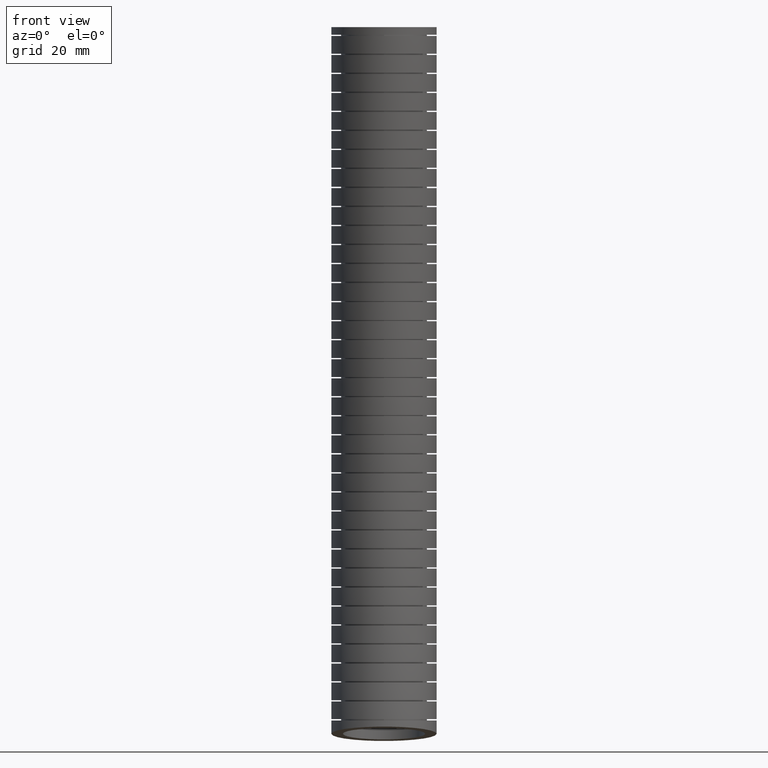
[diagram: clean part render]
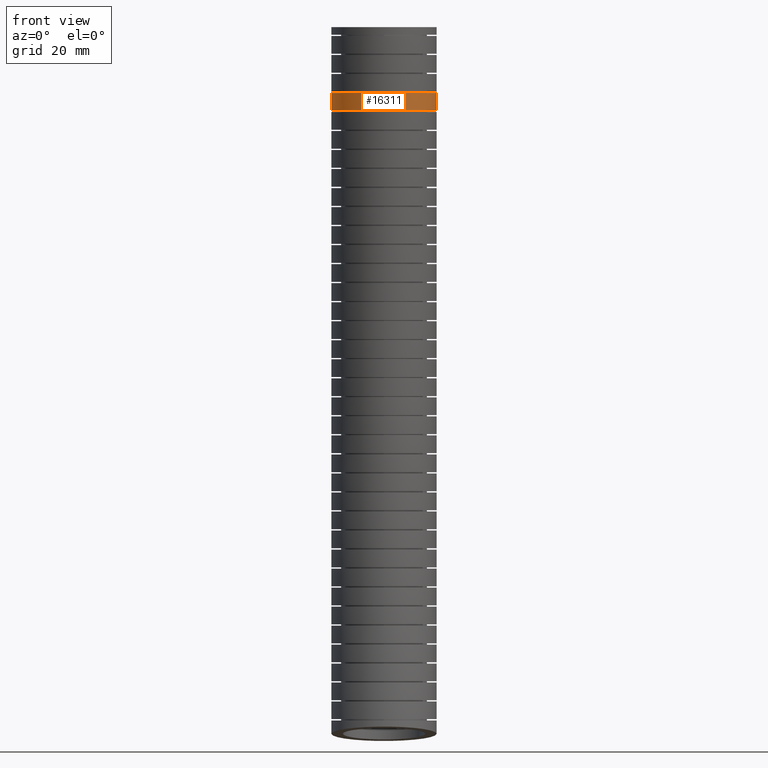
[diagram: same view with one face highlighted and labeled with its STEP entity id]
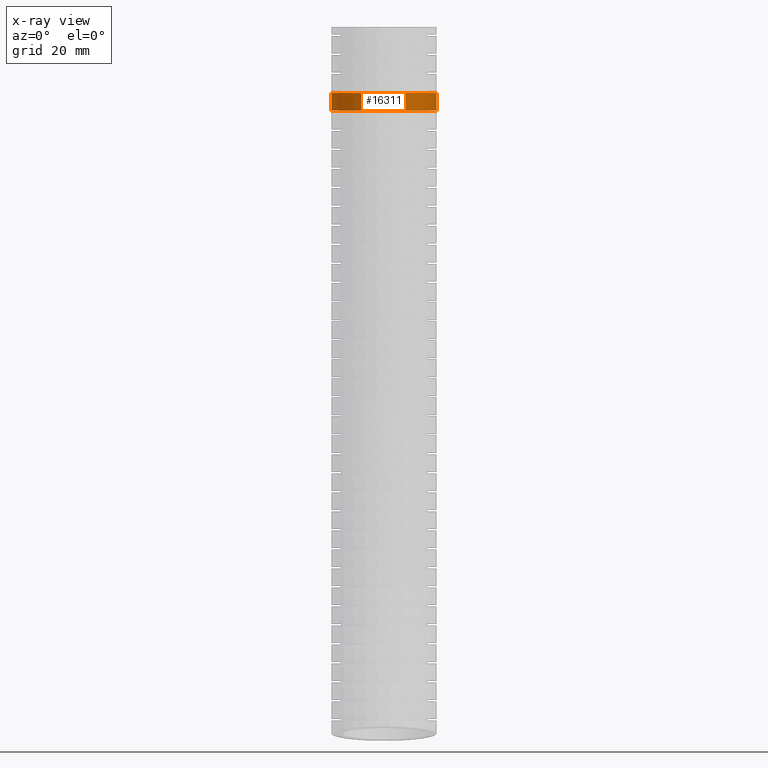
[diagram: x-ray of the same camera — body ghosted, the highlighted face saturated]
A machine part, front view. The second image highlights one B-rep face of the part: STEP entity #16311.
The next image is the same camera in x-ray: the body ghosted, the highlighted face saturated — about 0% of this face is hidden behind the body in this view.
In plain terms, the highlighted face is a freeform B-spline surface patch.
Its self-contained STEP definition (entity closure, byte-faithful):
#600 = EDGE_CURVE ( 'NONE', #16302, #602, #9120, .T. ) ;
#601 = ORIENTED_EDGE ( 'NONE', *, *, #614, .F. ) ;
#602 = VERTEX_POINT ( 'NONE', #9121 ) ;
#614 = EDGE_CURVE ( 'NONE', #16298, #602, #9215, .T. ) ;
#1728 = CARTESIAN_POINT ( 'NONE',  ( 0.4150000000000000900, 0.8772143935941071300, -1.050081882658727000 ) ) ;
#1850 = CARTESIAN_POINT ( 'NONE',  ( -0.4150000000000002000, 0.02915619261226633200, -0.6594165567846660400 ) ) ;
#1851 = CARTESIAN_POINT ( 'NONE',  ( 0.4150000000000000900, 0.02311179758190220000, -0.5195564475854548300 ) ) ;
#1854 = CARTESIAN_POINT ( 'NONE',  ( -0.4150000000000000900, 0.02311179758190024300, -0.5195564475854317400 ) ) ;
#1899 = CARTESIAN_POINT ( 'NONE',  ( -0.4150000000000002000, 0.02915619261226633200, -0.6594165567846660400 ) ) ;
#1900 = CARTESIAN_POINT ( 'NONE',  ( -0.4150000000000000900, 0.02716095543983203200, -0.6127973374930321100 ) ) ;
#1901 = CARTESIAN_POINT ( 'NONE',  ( -0.4150000000000000900, 0.02514466886423209400, -0.5661772389268879800 ) ) ;
#1902 = CARTESIAN_POINT ( 'NONE',  ( -0.4150000000000000900, 0.02311179758190024300, -0.5195564475854317400 ) ) ;
#1904 = B_SPLINE_CURVE_WITH_KNOTS ( 'NONE', 3,
 ( #1902, #1901, #1900, #1899 ),
 .UNSPECIFIED., .F., .F.,
 ( 4, 4 ),
 ( 0.09308337064173798100, 0.1181419380860695600 ),
 .UNSPECIFIED. ) ;
#1915 = FACE_OUTER_BOUND ( 'NONE', #16310, .T. ) ;
#1952 =( BOUNDED_SURFACE ( )  B_SPLINE_SURFACE ( 3, 3, ( 
 ( #2000, #1999, #1998, #1997, #1996, #1995 ),
 ( #1994, #1993, #1991, #1990, #1989, #1988 ),
 ( #1987, #1986, #1985, #1984, #1983, #1982 ),
 ( #1981, #1980, #1979, #1978, #1977, #1976 ),
 ( #1975, #1974, #1973, #1972, #1971, #1970 ),
 ( #1969, #1728, #2030, #2029, #2028, #2027 ),
 ( #2026, #2025, #2024, #2023, #2022, #2021 ) ),
 .UNSPECIFIED., .F., .F., .F. ) 
 B_SPLINE_SURFACE_WITH_KNOTS ( ( 4, 3, 4 ),
 ( 4, 1, 1, 4 ),
 ( 0.0000000000000000000, 0.5000000000000000000, 1.000000000000000000 ),
 ( 0.0000000000000000000, 0.5600000000000000500, 0.8973141982067990300, 1.000000000000000000 ),
 .UNSPECIFIED. ) 
 GEOMETRIC_REPRESENTATION_ITEM ( )  RATIONAL_B_SPLINE_SURFACE ( (
 ( 1.000000000000000000, 1.000000000000000000, 1.000000000000000000, 1.000000000000000000, 1.000000000000000000, 1.000000000000000000),
 ( 0.3333333333333333100, 0.3333333333333333100, 0.3333333333333333100, 0.3333333333333333100, 0.3333333333333332600, 0.3333333333333333100),
 ( 0.3333333333333333100, 0.3333333333333333100, 0.3333333333333333100, 0.3333333333333333100, 0.3333333333333332600, 0.3333333333333333100),
 ( 1.000000000000000000, 1.000000000000000000, 1.000000000000000000, 1.000000000000000000, 1.000000000000000000, 1.000000000000000000),
 ( 0.3333333333333333100, 0.3333333333333333100, 0.3333333333333333100, 0.3333333333333333100, 0.3333333333333332600, 0.3333333333333333100),
 ( 0.3333333333333333100, 0.3333333333333333100, 0.3333333333333333100, 0.3333333333333333100, 0.3333333333333332600, 0.3333333333333333100),
 ( 1.000000000000000000, 1.000000000000000000, 1.000000000000000000, 1.000000000000000000, 1.000000000000000000, 1.000000000000000000) ) ) 
 REPRESENTATION_ITEM ( '' )  SURFACE ( )  );
#1969 = CARTESIAN_POINT ( 'NONE',  ( 0.4150000000000000900, 0.8300000000000001800, 0.0000000000000000000 ) ) ;
#1970 = CARTESIAN_POINT ( 'NONE',  ( -0.4149999999999999200, 0.7922141346493595200, -5.683419208173947200 ) ) ;
#1971 = CARTESIAN_POINT ( 'NONE',  ( -0.4150000000000000400, 0.8104118928973711400, -5.486989566509566700 ) ) ;
#1972 = CARTESIAN_POINT ( 'NONE',  ( -0.4149999999999999200, 0.8883877521622221000, -4.645305119166129900 ) ) ;
#1973 = CARTESIAN_POINT ( 'NONE',  ( -0.4149999999999999200, 0.9528682252578860600, -2.732677208711230800 ) ) ;
#1974 = CARTESIAN_POINT ( 'NONE',  ( -0.4149999999999999200, 0.8772143935941071300, -1.050081882658727000 ) ) ;
#1975 = CARTESIAN_POINT ( 'NONE',  ( -0.4150000000000000400, 0.8300000000000001800, 0.0000000000000000000 ) ) ;
#1976 = CARTESIAN_POINT ( 'NONE',  ( -0.4150000000000000400, -0.02999999999999996800, -5.569999999999998500 ) ) ;
#1977 = CARTESIAN_POINT ( 'NONE',  ( -0.4150000000000000900, -0.01243844818931298000, -5.380037381098891700 ) ) ;
#1978 = CARTESIAN_POINT ( 'NONE',  ( -0.4150000000000000900, 0.06281132015026594200, -4.566063580857106200 ) ) ;
#1979 = CARTESIAN_POINT ( 'NONE',  ( -0.4149999999999999200, 0.1218071073635320100, -2.711443563840852700 ) ) ;
#1980 = CARTESIAN_POINT ( 'NONE',  ( -0.4150000000000000900, 0.04680663936954139500, -1.041922460934817000 ) ) ;
#1981 = CARTESIAN_POINT ( 'NONE',  ( -0.4150000000000000900, 5.082284216461516900E-017, 0.0000000000000000000 ) ) ;
#1982 = CARTESIAN_POINT ( 'NONE',  ( -0.4150000000000000900, -0.8522141346493592500, -5.456580791826050700 ) ) ;
#1983 = CARTESIAN_POINT ( 'NONE',  ( -0.4150000000000002000, -0.8352887892759974800, -5.273085195688222100 ) ) ;
#1984 = CARTESIAN_POINT ( 'NONE',  ( -0.4150000000000000900, -0.7627651118616902700, -4.486822042548080700 ) ) ;
#1985 = CARTESIAN_POINT ( 'NONE',  ( -0.4150000000000000400, -0.7092540105308221500, -2.690209918970475100 ) ) ;
#1986 = CARTESIAN_POINT ( 'NONE',  ( -0.4150000000000000900, -0.7836011148550242600, -1.033763039210906500 ) ) ;
#1987 = CARTESIAN_POINT ( 'NONE',  ( -0.4150000000000000900, -0.8300000000000001800, 0.0000000000000000000 ) ) ;
#1988 = CARTESIAN_POINT ( 'NONE',  ( 0.4150000000000000400, -0.8522141346493592500, -5.456580791826050700 ) ) ;
#1989 = CARTESIAN_POINT ( 'NONE',  ( 0.4150000000000002000, -0.8352887892759974800, -5.273085195688222100 ) ) ;
#1990 = CARTESIAN_POINT ( 'NONE',  ( 0.4150000000000000400, -0.7627651118616902700, -4.486822042548080700 ) ) ;
#1991 = CARTESIAN_POINT ( 'NONE',  ( 0.4150000000000000400, -0.7092540105308221500, -2.690209918970475100 ) ) ;
#1993 = CARTESIAN_POINT ( 'NONE',  ( 0.4150000000000000900, -0.7836011148550242600, -1.033763039210906500 ) ) ;
#1994 = CARTESIAN_POINT ( 'NONE',  ( 0.4150000000000000900, -0.8300000000000001800, 0.0000000000000000000 ) ) ;
#1995 = CARTESIAN_POINT ( 'NONE',  ( 0.4150000000000000400, -0.03000000000000001600, -5.569999999999998500 ) ) ;
#1996 = CARTESIAN_POINT ( 'NONE',  ( 0.4150000000000000900, -0.01243844818931303500, -5.380037381098891700 ) ) ;
#1997 = CARTESIAN_POINT ( 'NONE',  ( 0.4150000000000000900, 0.06281132015026588700, -4.566063580857106200 ) ) ;
#1998 = CARTESIAN_POINT ( 'NONE',  ( 0.4149999999999999200, 0.1218071073635319700, -2.711443563840852700 ) ) ;
#1999 = CARTESIAN_POINT ( 'NONE',  ( 0.4150000000000000900, 0.04680663936954134600, -1.041922460934817000 ) ) ;
#2000 = CARTESIAN_POINT ( 'NONE',  ( 0.4150000000000000900, 0.0000000000000000000, 0.0000000000000000000 ) ) ;
#2006 = CARTESIAN_POINT ( 'NONE',  ( 0.2742491807208282100, -0.2895358270586653700, -0.5195564475854320700 ) ) ;
#2007 = CARTESIAN_POINT ( 'NONE',  ( 0.3029727528102018100, -0.2608218082731244000, -0.5195564475854320700 ) ) ;
#2008 = CARTESIAN_POINT ( 'NONE',  ( 0.3121071908511868800, -0.2507560966552987400, -0.5195564475854315100 ) ) ;
#2009 = CARTESIAN_POINT ( 'NONE',  ( 0.3294675428818709100, -0.2296040799804550400, -0.5195564475854316200 ) ) ;
#2010 = CARTESIAN_POINT ( 'NONE',  ( 0.3376103117420691800, -0.2186112045115658800, -0.5195564475854315100 ) ) ;
#2011 = CARTESIAN_POINT ( 'NONE',  ( 0.3602017802865885600, -0.1847744518583299700, -0.5195564475854315100 ) ) ;
#2012 = CARTESIAN_POINT ( 'NONE',  ( 0.3729513078112539600, -0.1609356355721197600, -0.5195564475854318500 ) ) ;
#2013 = CARTESIAN_POINT ( 'NONE',  ( 0.3885771960678063300, -0.1232386343843415000, -0.5195564475854320700 ) ) ;
#2014 = CARTESIAN_POINT ( 'NONE',  ( 0.3932148939358325300, -0.1102792571021303900, -0.5195564475854320700 ) ) ;
#2015 = CARTESIAN_POINT ( 'NONE',  ( 0.4011160883544073200, -0.08420462716344492800, -0.5195564475854320700 ) ) ;
#2016 = CARTESIAN_POINT ( 'NONE',  ( 0.4044018585129887100, -0.07105409059020513500, -0.5195564475854319600 ) ) ;
#2017 = CARTESIAN_POINT ( 'NONE',  ( 0.4123092011968501600, -0.03127039678830209600, -0.5195564475854320700 ) ) ;
#2018 = CARTESIAN_POINT ( 'NONE',  ( 0.4150000000000000400, -0.004308424272490557800, -0.5195564475854547200 ) ) ;
#2019 = CARTESIAN_POINT ( 'NONE',  ( 0.4150000000000000900, 0.02311179758190220000, -0.5195564475854548300 ) ) ;
#2020 = B_SPLINE_CURVE_WITH_KNOTS ( 'NONE', 3,
 ( #2019, #2018, #2017, #2016, #2015, #2014, #2013, #2012, #2011, #2010, #2009, #2008, #2007, #2006, #2070, #2069, #2068, #2067, #2066, #2065, #2064, #2063, #2062, #2061, #2060, #2059, #2058, #2057, #2056, #2055, #2054, #2053, #2052, #2051, #2050, #2049, #2048, #2047, #2046, #2045, #2044, #2043, #2042, #2041, #2040, #2039, #2038 ),
 .UNSPECIFIED., .F., .F.,
 ( 4, 2, 2, 2, 2, 2, 2, 2, 2, 1, 2, 2, 2, 2, 2, 2, 2, 2, 2, 2, 2, 2, 2, 4 ),
 ( 0.0000000000000000000, 0.002059764832222988400, 0.003089647248334482800, 0.004119529664445976800, 0.006179294496668964700, 0.007209176912780458300, 0.008239059328891951800, 0.01029882416111494400, 0.01132870657722643600, 0.01235858899333793100, 0.01338847140944942800, 0.01441835382556092400, 0.01647811865778391800, 0.01750800107389541300, 0.01853788349000691200, 0.02059764832222990200, 0.02162753073834140100, 0.02265741315445290000, 0.02471717798667589700, 0.02677694281889889100, 0.02780682523501039000, 0.02883670765112188500, 0.03089647248334488600, 0.03295623731556789100 ),
 .UNSPECIFIED. ) ;
#2021 = CARTESIAN_POINT ( 'NONE',  ( 0.4150000000000000400, -0.03000000000000001600, -5.569999999999998500 ) ) ;
#2022 = CARTESIAN_POINT ( 'NONE',  ( 0.4150000000000000900, -0.01243844818931303500, -5.380037381098891700 ) ) ;
#2023 = CARTESIAN_POINT ( 'NONE',  ( 0.4150000000000000900, 0.06281132015026588700, -4.566063580857106200 ) ) ;
#2024 = CARTESIAN_POINT ( 'NONE',  ( 0.4149999999999999200, 0.1218071073635319700, -2.711443563840852700 ) ) ;
#2025 = CARTESIAN_POINT ( 'NONE',  ( 0.4150000000000000900, 0.04680663936954134600, -1.041922460934817000 ) ) ;
#2026 = CARTESIAN_POINT ( 'NONE',  ( 0.4150000000000000900, 0.0000000000000000000, 0.0000000000000000000 ) ) ;
#2027 = CARTESIAN_POINT ( 'NONE',  ( 0.4150000000000000400, 0.7922141346493595200, -5.683419208173947200 ) ) ;
#2028 = CARTESIAN_POINT ( 'NONE',  ( 0.4150000000000002000, 0.8104118928973711400, -5.486989566509566700 ) ) ;
#2029 = CARTESIAN_POINT ( 'NONE',  ( 0.4150000000000000400, 0.8883877521622221000, -4.645305119166129900 ) ) ;
#2030 = CARTESIAN_POINT ( 'NONE',  ( 0.4150000000000000400, 0.9528682252578860600, -2.732677208711230800 ) ) ;
#2038 = CARTESIAN_POINT ( 'NONE',  ( -0.4150000000000000900, 0.02311179758190024300, -0.5195564475854317400 ) ) ;
#2039 = CARTESIAN_POINT ( 'NONE',  ( -0.4150000000000001500, -0.003973675474081549500, -0.5195564475854316200 ) ) ;
#2040 = CARTESIAN_POINT ( 'NONE',  ( -0.4122860571347900500, -0.03148044610234705700, -0.5195564475854317400 ) ) ;
#2041 = CARTESIAN_POINT ( 'NONE',  ( -0.4016795590572413400, -0.08465603639334727500, -0.5195564475854316200 ) ) ;
#2042 = CARTESIAN_POINT ( 'NONE',  ( -0.3938356390526255900, -0.1105298522033690600, -0.5195564475854321800 ) ) ;
#2043 = CARTESIAN_POINT ( 'NONE',  ( -0.3782117351120438100, -0.1482563940619366100, -0.5195564475854320700 ) ) ;
#2044 = CARTESIAN_POINT ( 'NONE',  ( -0.3723231802516575600, -0.1607001103932285400, -0.5195564475854314000 ) ) ;
#2045 = CARTESIAN_POINT ( 'NONE',  ( -0.3594768215130053600, -0.1847056094003760000, -0.5195564475854314000 ) ) ;
#2046 = CARTESIAN_POINT ( 'NONE',  ( -0.3525025126856432000, -0.1963220815533822700, -0.5195564475854315100 ) ) ;
#2047 = CARTESIAN_POINT ( 'NONE',  ( -0.3299604081113782800, -0.2300366433708657100, -0.5195564475854315100 ) ) ;
#2048 = CARTESIAN_POINT ( 'NONE',  ( -0.3127537702713023000, -0.2510466481501426000, -0.5195564475854319600 ) ) ;
#2049 = CARTESIAN_POINT ( 'NONE',  ( -0.2740032007889223200, -0.2897791182989429300, -0.5195564475854319600 ) ) ;
#2050 = CARTESIAN_POINT ( 'NONE',  ( -0.2530416505878355100, -0.3069333114975091300, -0.5195564475854319600 ) ) ;
#2051 = CARTESIAN_POINT ( 'NONE',  ( -0.2193095865871089200, -0.3294715683414376500, -0.5195564475854319600 ) ) ;
#2052 = CARTESIAN_POINT ( 'NONE',  ( -0.2076811262131978700, -0.3364482216674172200, -0.5195564475854319600 ) ) ;
#2053 = CARTESIAN_POINT ( 'NONE',  ( -0.1836364624881313400, -0.3493030233735688900, -0.5195564475854318500 ) ) ;
#2054 = CARTESIAN_POINT ( 'NONE',  ( -0.1711976983356140700, -0.3551811881182580500, -0.5195564475854318500 ) ) ;
#2055 = CARTESIAN_POINT ( 'NONE',  ( -0.1335129432965329600, -0.3707705311069461300, -0.5195564475854319600 ) ) ;
#2056 = CARTESIAN_POINT ( 'NONE',  ( -0.1076420839764540400, -0.3786089785501699500, -0.5195564475854318500 ) ) ;
#2057 = CARTESIAN_POINT ( 'NONE',  ( -0.06772059997462816200, -0.3865566345327603500, -0.5195564475854319600 ) ) ;
#2058 = CARTESIAN_POINT ( 'NONE',  ( -0.05416488999104634300, -0.3885716877877279400, -0.5195564475854314000 ) ) ;
#2059 = CARTESIAN_POINT ( 'NONE',  ( -0.02695563557872601000, -0.3912438341150022400, -0.5195564475854315100 ) ) ;
#2060 = CARTESIAN_POINT ( 'NONE',  ( -0.01338685110861819300, -0.3918994109055302700, -0.5195564475854319600 ) ) ;
#2061 = CARTESIAN_POINT ( 'NONE',  ( 0.02721515344249799900, -0.3918850140516738100, -0.5195564475854317400 ) ) ;
#2062 = CARTESIAN_POINT ( 'NONE',  ( 0.05414501912975035900, -0.3892527937196322300, -0.5195564475854314000 ) ) ;
#2063 = CARTESIAN_POINT ( 'NONE',  ( 0.09432694874183288100, -0.3812630159677666300, -0.5195564475854311800 ) ) ;
#2064 = CARTESIAN_POINT ( 'NONE',  ( 0.1076428881306420700, -0.3779210265492179400, -0.5195564475854316200 ) ) ;
#2065 = CARTESIAN_POINT ( 'NONE',  ( 0.1336239471402518600, -0.3700278263936375700, -0.5195564475854315100 ) ) ;
#2066 = CARTESIAN_POINT ( 'NONE',  ( 0.1590973364871878800, -0.3608995699800567900, -0.5195564475854322900 ) ) ;
#2067 = CARTESIAN_POINT ( 'NONE',  ( 0.1835690673565170700, -0.3493344837495703800, -0.5195564475854316200 ) ) ;
#2068 = CARTESIAN_POINT ( 'NONE',  ( 0.2075322970827743500, -0.3365323184396564200, -0.5195564475854317400 ) ) ;
#2069 = CARTESIAN_POINT ( 'NONE',  ( 0.2193224574897610100, -0.3294682754620883400, -0.5195564475854320700 ) ) ;
#2070 = CARTESIAN_POINT ( 'NONE',  ( 0.2533522909885251900, -0.3067150626380389400, -0.5195564475854321800 ) ) ;
#9090 = CARTESIAN_POINT ( 'NONE',  ( 0.1834569852975665400, -0.3433468618539907700, -0.6594165567846659300 ) ) ;
#9091 = CARTESIAN_POINT ( 'NONE',  ( 0.1711806125887984900, -0.3491410621246700000, -0.6594165567846660400 ) ) ;
#9092 = CARTESIAN_POINT ( 'NONE',  ( 0.1336799270348531500, -0.3646592831115097500, -0.6594165567846661500 ) ) ;
#9093 = CARTESIAN_POINT ( 'NONE',  ( 0.1077904887117886700, -0.3725368078971638700, -0.6594165567846661500 ) ) ;
#9094 = CARTESIAN_POINT ( 'NONE',  ( 0.06758180684996871500, -0.3805371930341467900, -0.6594165567846661500 ) ) ;
#9095 = CARTESIAN_POINT ( 'NONE',  ( 0.05402188565098570800, -0.3825414903875959900, -0.6594165567846659300 ) ) ;
#9096 = CARTESIAN_POINT ( 'NONE',  ( 0.02701605973622616200, -0.3851909245929431300, -0.6594165567846657100 ) ) ;
#9097 = CARTESIAN_POINT ( 'NONE',  ( -9.245879128389179400E-007, -0.3865075458550464300, -0.6594165567846662600 ) ) ;
#9098 = CARTESIAN_POINT ( 'NONE',  ( -0.02703996150365765800, -0.3851901017664811100, -0.6594165567846661500 ) ) ;
#9099 = CARTESIAN_POINT ( 'NONE',  ( -0.05409021195762779600, -0.3825332598860276500, -0.6594165567846662600 ) ) ;
#9100 = CARTESIAN_POINT ( 'NONE',  ( -0.06769543158240182200, -0.3805173405361101400, -0.6594165567846654900 ) ) ;
#9101 = CARTESIAN_POINT ( 'NONE',  ( -0.1078060342157009400, -0.3725281784981659400, -0.6594165567846656000 ) ) ;
#9102 = CARTESIAN_POINT ( 'NONE',  ( -0.1336790031334777800, -0.3646613171289679900, -0.6594165567846653800 ) ) ;
#9103 = CARTESIAN_POINT ( 'NONE',  ( -0.1837250033878653200, -0.3439483938049068800, -0.6594165567846657100 ) ) ;
#9104 = CARTESIAN_POINT ( 'NONE',  ( -0.2080996337375400900, -0.3309238319654693200, -0.6594165567846657100 ) ) ;
#9105 = CARTESIAN_POINT ( 'NONE',  ( -0.2531712880035034100, -0.3007935904354595600, -0.6594165567846661500 ) ) ;
#9106 = CARTESIAN_POINT ( 'NONE',  ( -0.2740762106057054200, -0.2836544968717958900, -0.6594165567846660400 ) ) ;
#9107 = CARTESIAN_POINT ( 'NONE',  ( -0.3029571493883626600, -0.2547966349007073600, -0.6594165567846660400 ) ) ;
#9108 = CARTESIAN_POINT ( 'NONE',  ( -0.3122022945003845600, -0.2445989694402265800, -0.6594165567846651500 ) ) ;
#9109 = CARTESIAN_POINT ( 'NONE',  ( -0.3294692829676909600, -0.2235528776936352700, -0.6594165567846654900 ) ) ;
#9110 = CARTESIAN_POINT ( 'NONE',  ( -0.3375352399030454000, -0.2126684153355653000, -0.6594165567846653800 ) ) ;
#9111 = CARTESIAN_POINT ( 'NONE',  ( -0.3600657753809583000, -0.1789532434675657800, -0.6594165567846653800 ) ) ;
#9112 = CARTESIAN_POINT ( 'NONE',  ( -0.3728983081262323100, -0.1550256642090617800, -0.6594165567846651500 ) ) ;
#9113 = CARTESIAN_POINT ( 'NONE',  ( -0.3938703549480035400, -0.1044171638831465800, -0.6594165567846651500 ) ) ;
#9114 = CARTESIAN_POINT ( 'NONE',  ( -0.4017064914030369400, -0.07849335484285328800, -0.6594165567846656000 ) ) ;
#9115 = CARTESIAN_POINT ( 'NONE',  ( -0.4096359897361376800, -0.03871340284451715900, -0.6594165567846653800 ) ) ;
#9116 = CARTESIAN_POINT ( 'NONE',  ( -0.4116370015396911800, -0.02530327945858272900, -0.6594165567846661500 ) ) ;
#9117 = CARTESIAN_POINT ( 'NONE',  ( -0.4143232826636425400, 0.001824595506228273100, -0.6594165567846660400 ) ) ;
#9118 = CARTESIAN_POINT ( 'NONE',  ( -0.4150000000000002000, 0.01556392642395350100, -0.6594165567846661500 ) ) ;
#9119 = CARTESIAN_POINT ( 'NONE',  ( -0.4150000000000002000, 0.02915619261226633200, -0.6594165567846660400 ) ) ;
#9120 = B_SPLINE_CURVE_WITH_KNOTS ( 'NONE', 3,
 ( #9119, #9118, #9117, #9116, #9115, #9114, #9113, #9112, #9111, #9110, #9109, #9108, #9107, #9106, #9105, #9104, #9103, #9102, #9101, #9100, #9099, #9098, #9097, #9096, #9095, #9094, #9093, #9092, #9091, #9090, #9153, #9152, #9151, #9150, #9149, #9147, #9146, #9145, #9144, #9143, #9142, #9141, #9140, #9139, #9137, #9136, #9135, #9134 ),
 .UNSPECIFIED., .F., .F.,
 ( 4, 2, 2, 2, 2, 2, 2, 2, 2, 2, 2, 1, 2, 2, 2, 2, 2, 2, 2, 2, 2, 2, 1, 2, 4 ),
 ( 0.03330847775322123100, 0.03434942694822080300, 0.03539037614322037400, 0.03747227453321951700, 0.03955417292321866700, 0.04059512211821823800, 0.04163607131321781000, 0.04371796970321695900, 0.04579986809321610900, 0.04788176648321525200, 0.04892271567821482300, 0.04996366487321440100, 0.05100461406821398000, 0.05204556326321355100, 0.05412746165321269400, 0.05516841084821226500, 0.05620936004321183700, 0.05829125843321099300, 0.05933220762821056500, 0.06037315682321012900, 0.06245505521320927900, 0.06349600440820885000, 0.06453695360320842200, 0.06557790279820799300, 0.06661885199320756500 ),
 .UNSPECIFIED. ) ;
#9121 = CARTESIAN_POINT ( 'NONE',  ( 0.4150000000000000900, 0.02915619261226908400, -0.6594165567846985700 ) ) ;
#9134 = CARTESIAN_POINT ( 'NONE',  ( 0.4150000000000000900, 0.02915619261226908400, -0.6594165567846985700 ) ) ;
#9135 = CARTESIAN_POINT ( 'NONE',  ( 0.4150000000000001500, 0.01544809956362307200, -0.6594165567846985700 ) ) ;
#9136 = CARTESIAN_POINT ( 'NONE',  ( 0.4143161867517292100, 0.001731284092122098600, -0.6594165567846659300 ) ) ;
#9137 = CARTESIAN_POINT ( 'NONE',  ( 0.4116312265584219900, -0.02533984286154259900, -0.6594165567846659300 ) ) ;
#9139 = CARTESIAN_POINT ( 'NONE',  ( 0.4076337566264817100, -0.05212715648754340200, -0.6594165567846648200 ) ) ;
#9140 = CARTESIAN_POINT ( 'NONE',  ( 0.4010609828634130200, -0.07835759382642625000, -0.6594165567846659300 ) ) ;
#9141 = CARTESIAN_POINT ( 'NONE',  ( 0.3931881067524586900, -0.1043069007761043000, -0.6594165567846659300 ) ) ;
#9142 = CARTESIAN_POINT ( 'NONE',  ( 0.3885845151332917900, -0.1171818327193772900, -0.6594165567846659300 ) ) ;
#9143 = CARTESIAN_POINT ( 'NONE',  ( 0.3728608384950901600, -0.1550975882577220200, -0.6594165567846660400 ) ) ;
#9144 = CARTESIAN_POINT ( 'NONE',  ( 0.3600654275566266300, -0.1789556410446846700, -0.6594165567846656000 ) ) ;
#9145 = CARTESIAN_POINT ( 'NONE',  ( 0.3375220725814094800, -0.2126871798192336600, -0.6594165567846657100 ) ) ;
#9146 = CARTESIAN_POINT ( 'NONE',  ( 0.3294451610278962300, -0.2235859285514412400, -0.6594165567846662600 ) ) ;
#9147 = CARTESIAN_POINT ( 'NONE',  ( 0.3121368387751687300, -0.2446750825368028700, -0.6594165567846660400 ) ) ;
#9149 = CARTESIAN_POINT ( 'NONE',  ( 0.3029013987871567700, -0.2548548921894677700, -0.6594165567846656000 ) ) ;
#9150 = CARTESIAN_POINT ( 'NONE',  ( 0.2740704569036012100, -0.2836551279118151300, -0.6594165567846656000 ) ) ;
#9151 = CARTESIAN_POINT ( 'NONE',  ( 0.2531733342489531100, -0.3007952392297192900, -0.6594165567846661500 ) ) ;
#9152 = CARTESIAN_POINT ( 'NONE',  ( 0.2193186788777692900, -0.3234224284022091400, -0.6594165567846661500 ) ) ;
#9153 = CARTESIAN_POINT ( 'NONE',  ( 0.2075491697485404000, -0.3304798695599770500, -0.6594165567846659300 ) ) ;
#9210 = CARTESIAN_POINT ( 'NONE',  ( 0.4150000000000000900, 0.02915619261226908400, -0.6594165567846985700 ) ) ;
#9211 = CARTESIAN_POINT ( 'NONE',  ( 0.4150000000000000900, 0.02716095543983325000, -0.6127973374930615300 ) ) ;
#9212 = CARTESIAN_POINT ( 'NONE',  ( 0.4150000000000000900, 0.02514466886423318400, -0.5661772389269141800 ) ) ;
#9213 = CARTESIAN_POINT ( 'NONE',  ( 0.4150000000000000900, 0.02311179758190220000, -0.5195564475854548300 ) ) ;
#9215 = B_SPLINE_CURVE_WITH_KNOTS ( 'NONE', 3,
 ( #9213, #9212, #9211, #9210 ),
 .UNSPECIFIED., .F., .F.,
 ( 4, 4 ),
 ( 0.09308337064174210300, 0.1181419380860754100 ),
 .UNSPECIFIED. ) ;
#16294 = VERTEX_POINT ( 'NONE', #1854 ) ;
#16296 = ORIENTED_EDGE ( 'NONE', *, *, #600, .T. ) ;
#16298 = VERTEX_POINT ( 'NONE', #1851 ) ;
#16299 = ORIENTED_EDGE ( 'NONE', *, *, #16303, .T. ) ;
#16302 = VERTEX_POINT ( 'NONE', #1850 ) ;
#16303 = EDGE_CURVE ( 'NONE', #16294, #16302, #1904, .T. ) ;
#16310 = EDGE_LOOP ( 'NONE', ( #16313, #16299, #16296, #601 ) ) ;
#16311 = ADVANCED_FACE ( 'NONE', ( #1915 ), #1952, .T. ) ;
#16312 = EDGE_CURVE ( 'NONE', #16298, #16294, #2020, .T. ) ;
#16313 = ORIENTED_EDGE ( 'NONE', *, *, #16312, .T. ) ;